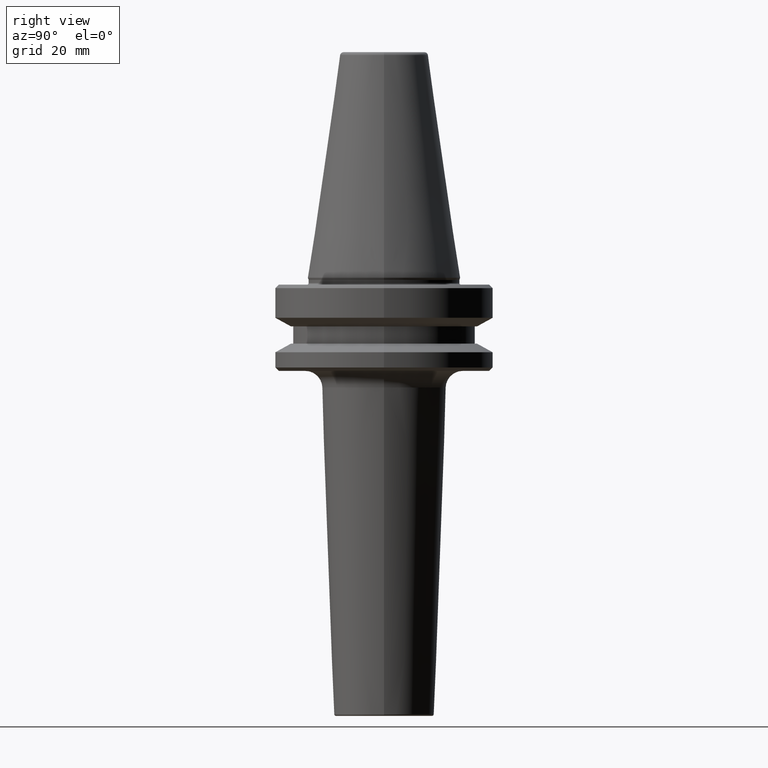
[diagram: clean part render]
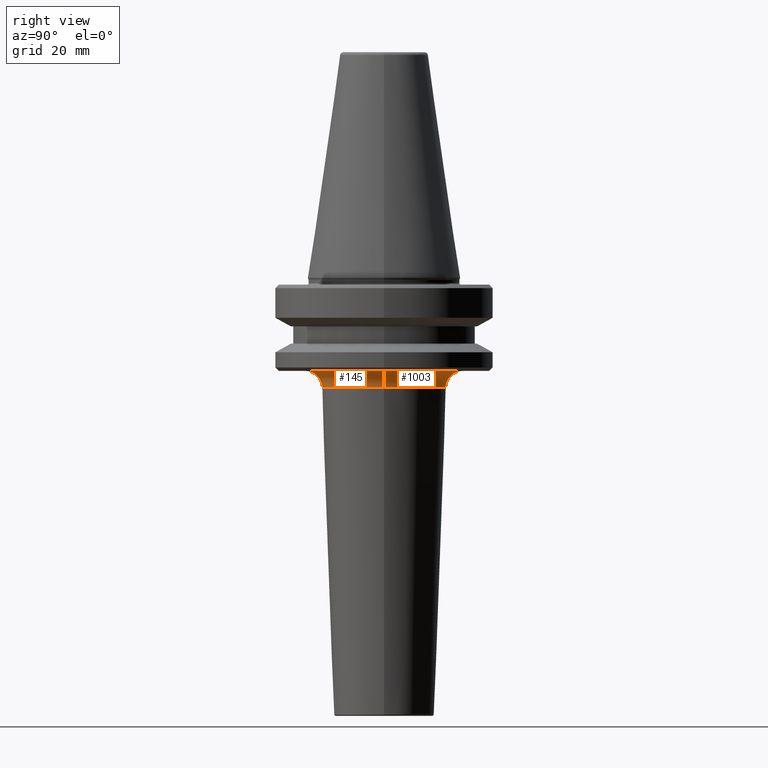
[diagram: same view with one multi-face feature highlighted, each face labeled with its STEP entity id]
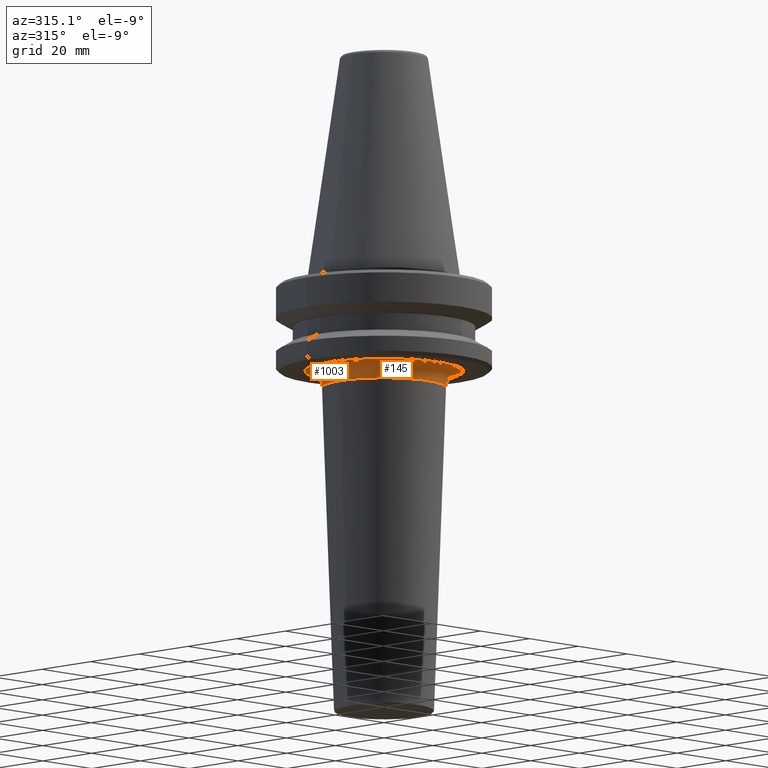
[diagram: same view with one multi-face feature highlighted, each face labeled with its STEP entity id]
A machine part, right view. The highlighted faces form ONE feature: a constant-radius fillet chain: 2 tangent blend faces with common blend radius 5 mm. The faces share edges in the B-rep.
A second angle (auxiliary view) of the same feature is appended — it is thin or edge-on in the first view.
Their STEP definitions:
[1] entity #145 (Torus):
#61 = ORIENTED_EDGE ( 'NONE', *, *, #204, .F. ) ;
#93 = DIRECTION ( 'NONE',  ( 1.000000000000000000, 0.0000000000000000000, 0.0000000000000000000 ) ) ;
#122 = EDGE_CURVE ( 'NONE', #989, #314, #300, .T. ) ;
#125 = CARTESIAN_POINT ( 'NONE',  ( 0.0000000000000000000, 0.0000000000000000000, -92.40000000000802100 ) ) ;
#145 = ADVANCED_FACE ( 'NONE', ( #381 ), #583, .F. ) ;
#180 = DIRECTION ( 'NONE',  ( -0.0000000000000000000, -0.0000000000000000000, 1.000000000000000000 ) ) ;
#186 = CIRCLE ( 'NONE', #351, 22.99662315975860900 ) ;
#204 = EDGE_CURVE ( 'NONE', #989, #816, #186, .T. ) ;
#207 = DIRECTION ( 'NONE',  ( -1.000000000000000000, 1.224646799147352200E-016, 0.0000000000000000000 ) ) ;
#212 = CARTESIAN_POINT ( 'NONE',  ( -18.00000000000000000, 2.510319166422431300E-015, -97.21626922043127200 ) ) ;
#297 = DIRECTION ( 'NONE',  ( 0.0000000000000000000, -1.000000000000000000, 0.0000000000000000000 ) ) ;
#300 = CIRCLE ( 'NONE', #635, 5.000000000000011500 ) ;
#314 = VERTEX_POINT ( 'NONE', #212 ) ;
#335 = DIRECTION ( 'NONE',  ( -0.0000000000000000000, -0.0000000000000000000, 1.000000000000000000 ) ) ;
#351 = AXIS2_PLACEMENT_3D ( 'NONE', #125, #578, #93 ) ;
#373 = DIRECTION ( 'NONE',  ( 1.000000000000000000, 0.0000000000000000000, 0.0000000000000000000 ) ) ;
#378 = CARTESIAN_POINT ( 'NONE',  ( 0.0000000000000000000, 0.0000000000000000000, -97.21626922043127200 ) ) ;
#381 = FACE_OUTER_BOUND ( 'NONE', #899, .T. ) ;
#419 = DIRECTION ( 'NONE',  ( 1.000000000000000000, 0.0000000000000000000, 0.0000000000000000000 ) ) ;
#430 = DIRECTION ( 'NONE',  ( 0.0000000000000000000, 0.0000000000000000000, -1.000000000000000000 ) ) ;
#445 = CARTESIAN_POINT ( 'NONE',  ( 22.99662315975860900, 0.0000000000000000000, -97.40000000000803500 ) ) ;
#465 = CIRCLE ( 'NONE', #542, 18.00000000000000000 ) ;
#495 = ORIENTED_EDGE ( 'NONE', *, *, #811, .F. ) ;
#542 = AXIS2_PLACEMENT_3D ( 'NONE', #378, #180, #373 ) ;
#567 = CARTESIAN_POINT ( 'NONE',  ( 22.99662315975860900, 0.0000000000000000000, -92.40000000000803500 ) ) ;
#575 = AXIS2_PLACEMENT_3D ( 'NONE', #445, #297, #430 ) ;
#578 = DIRECTION ( 'NONE',  ( -0.0000000000000000000, -0.0000000000000000000, 1.000000000000000000 ) ) ;
#583 = TOROIDAL_SURFACE ( 'NONE', #802, 22.99662315975860900, 5.000000000000009800 ) ;
#605 = EDGE_CURVE ( 'NONE', #314, #736, #465, .T. ) ;
#617 = CARTESIAN_POINT ( 'NONE',  ( -22.99662315975860900, 2.816274094379627500E-015, -97.40000000000803500 ) ) ;
#635 = AXIS2_PLACEMENT_3D ( 'NONE', #617, #838, #207 ) ;
#651 = ORIENTED_EDGE ( 'NONE', *, *, #605, .T. ) ;
#682 = CARTESIAN_POINT ( 'NONE',  ( 0.0000000000000000000, 0.0000000000000000000, -97.40000000000803500 ) ) ;
#736 = VERTEX_POINT ( 'NONE', #949 ) ;
#780 = CARTESIAN_POINT ( 'NONE',  ( -22.99662315975860900, 2.816274094379627500E-015, -92.40000000000803500 ) ) ;
#802 = AXIS2_PLACEMENT_3D ( 'NONE', #682, #335, #419 ) ;
#809 = ORIENTED_EDGE ( 'NONE', *, *, #122, .T. ) ;
#811 = EDGE_CURVE ( 'NONE', #816, #736, #998, .T. ) ;
#816 = VERTEX_POINT ( 'NONE', #567 ) ;
#838 = DIRECTION ( 'NONE',  ( 1.224646799147353200E-016, 1.000000000000000000, 0.0000000000000000000 ) ) ;
#899 = EDGE_LOOP ( 'NONE', ( #61, #809, #651, #495 ) ) ;
#949 = CARTESIAN_POINT ( 'NONE',  ( 18.00000000000000000, 0.0000000000000000000, -97.21626922043127200 ) ) ;
#989 = VERTEX_POINT ( 'NONE', #780 ) ;
#998 = CIRCLE ( 'NONE', #575, 5.000000000000004400 ) ;
[2] entity #1003 (Torus):
#21 = FACE_OUTER_BOUND ( 'NONE', #206, .T. ) ;
#58 = DIRECTION ( 'NONE',  ( -0.0000000000000000000, -0.0000000000000000000, 1.000000000000000000 ) ) ;
#109 = EDGE_CURVE ( 'NONE', #816, #989, #400, .T. ) ;
#122 = EDGE_CURVE ( 'NONE', #989, #314, #300, .T. ) ;
#206 = EDGE_LOOP ( 'NONE', ( #874, #226, #637, #695 ) ) ;
#207 = DIRECTION ( 'NONE',  ( -1.000000000000000000, 1.224646799147352200E-016, 0.0000000000000000000 ) ) ;
#212 = CARTESIAN_POINT ( 'NONE',  ( -18.00000000000000000, 2.510319166422431300E-015, -97.21626922043127200 ) ) ;
#226 = ORIENTED_EDGE ( 'NONE', *, *, #109, .F. ) ;
#253 = TOROIDAL_SURFACE ( 'NONE', #555, 22.99662315975860900, 5.000000000000009800 ) ;
#284 = DIRECTION ( 'NONE',  ( -0.0000000000000000000, -0.0000000000000000000, 1.000000000000000000 ) ) ;
#297 = DIRECTION ( 'NONE',  ( 0.0000000000000000000, -1.000000000000000000, 0.0000000000000000000 ) ) ;
#300 = CIRCLE ( 'NONE', #635, 5.000000000000011500 ) ;
#314 = VERTEX_POINT ( 'NONE', #212 ) ;
#320 = DIRECTION ( 'NONE',  ( 1.000000000000000000, 0.0000000000000000000, 0.0000000000000000000 ) ) ;
#400 = CIRCLE ( 'NONE', #528, 22.99662315975860900 ) ;
#430 = DIRECTION ( 'NONE',  ( 0.0000000000000000000, 0.0000000000000000000, -1.000000000000000000 ) ) ;
#445 = CARTESIAN_POINT ( 'NONE',  ( 22.99662315975860900, 0.0000000000000000000, -97.40000000000803500 ) ) ;
#528 = AXIS2_PLACEMENT_3D ( 'NONE', #756, #284, #673 ) ;
#555 = AXIS2_PLACEMENT_3D ( 'NONE', #915, #58, #320 ) ;
#567 = CARTESIAN_POINT ( 'NONE',  ( 22.99662315975860900, 0.0000000000000000000, -92.40000000000803500 ) ) ;
#575 = AXIS2_PLACEMENT_3D ( 'NONE', #445, #297, #430 ) ;
#617 = CARTESIAN_POINT ( 'NONE',  ( -22.99662315975860900, 2.816274094379627500E-015, -97.40000000000803500 ) ) ;
#635 = AXIS2_PLACEMENT_3D ( 'NONE', #617, #838, #207 ) ;
#637 = ORIENTED_EDGE ( 'NONE', *, *, #811, .T. ) ;
#673 = DIRECTION ( 'NONE',  ( 1.000000000000000000, 0.0000000000000000000, 0.0000000000000000000 ) ) ;
#695 = ORIENTED_EDGE ( 'NONE', *, *, #1041, .T. ) ;
#736 = VERTEX_POINT ( 'NONE', #949 ) ;
#756 = CARTESIAN_POINT ( 'NONE',  ( 0.0000000000000000000, 0.0000000000000000000, -92.40000000000802100 ) ) ;
#777 = AXIS2_PLACEMENT_3D ( 'NONE', #796, #1023, #845 ) ;
#780 = CARTESIAN_POINT ( 'NONE',  ( -22.99662315975860900, 2.816274094379627500E-015, -92.40000000000803500 ) ) ;
#796 = CARTESIAN_POINT ( 'NONE',  ( 0.0000000000000000000, 0.0000000000000000000, -97.21626922043127200 ) ) ;
#811 = EDGE_CURVE ( 'NONE', #816, #736, #998, .T. ) ;
#816 = VERTEX_POINT ( 'NONE', #567 ) ;
#838 = DIRECTION ( 'NONE',  ( 1.224646799147353200E-016, 1.000000000000000000, 0.0000000000000000000 ) ) ;
#845 = DIRECTION ( 'NONE',  ( 1.000000000000000000, 0.0000000000000000000, 0.0000000000000000000 ) ) ;
#870 = CIRCLE ( 'NONE', #777, 18.00000000000000000 ) ;
#874 = ORIENTED_EDGE ( 'NONE', *, *, #122, .F. ) ;
#915 = CARTESIAN_POINT ( 'NONE',  ( 0.0000000000000000000, 0.0000000000000000000, -97.40000000000803500 ) ) ;
#949 = CARTESIAN_POINT ( 'NONE',  ( 18.00000000000000000, 0.0000000000000000000, -97.21626922043127200 ) ) ;
#989 = VERTEX_POINT ( 'NONE', #780 ) ;
#998 = CIRCLE ( 'NONE', #575, 5.000000000000004400 ) ;
#1003 = ADVANCED_FACE ( 'NONE', ( #21 ), #253, .F. ) ;
#1023 = DIRECTION ( 'NONE',  ( -0.0000000000000000000, -0.0000000000000000000, 1.000000000000000000 ) ) ;
#1041 = EDGE_CURVE ( 'NONE', #736, #314, #870, .T. ) ;